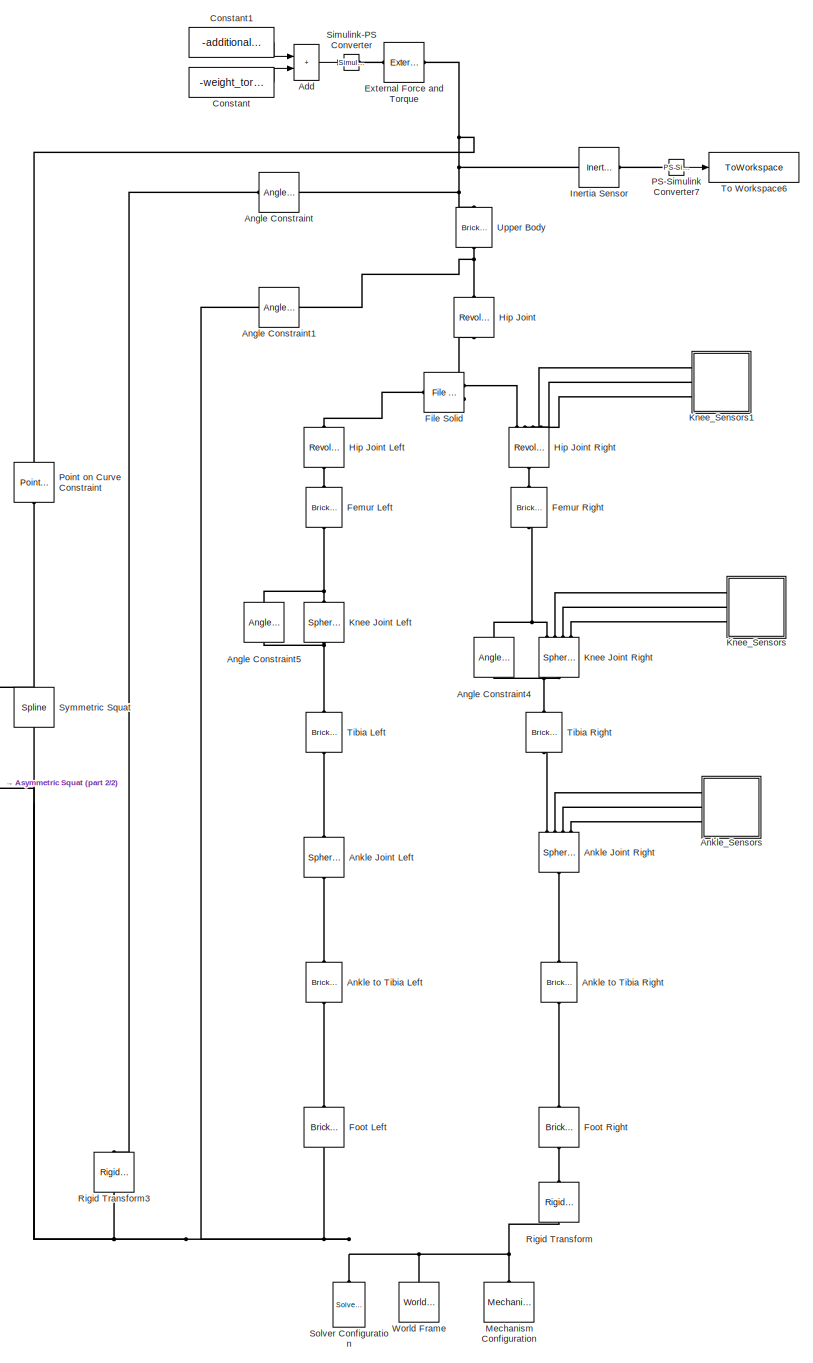
[diagram: root canvas - part 1/2, most of the canvas]
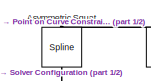
[diagram: root canvas - part 2/2, middle left region]
MODEL slx_13ce72e921bf
KIND model
CONFIG AbsTol = auto
CONFIG EnableMultiTasking = off
CONFIG FixedStep = auto
CONFIG MaxStep = auto
CONFIG MinStep = auto
CONFIG RelTol = 1e-3
CONFIG SampleTimeConstraint = Unconstrained
CONFIG SolverName = VariableStepAuto
CONFIG StartTime = 0.0
CONFIG StopTime = 10.0
BLOCK [Sum] Add
  IconShape = rectangular
  Ports = [2, 1]
BLOCK [Reference] Angle Constraint  REF=sm_lib/Constraints/Angle
Constraint
  Ports = [0, 0, 0, 0, 0, 1, 1]
  SourceBlock = sm_lib/Constraints/Angle\nConstraint
  SourceProductBaseCode = MS
  SourceType = Angle\nConstraint
BLOCK [Reference] Angle Constraint1  REF=sm_lib/Constraints/Angle
Constraint
  Ports = [0, 0, 0, 0, 0, 1, 1]
  SourceBlock = sm_lib/Constraints/Angle\nConstraint
  SourceProductBaseCode = MS
  SourceType = Angle\nConstraint
BLOCK [Reference] Angle Constraint4  REF=sm_lib/Constraints/Angle
Constraint
  NameLocation = left
  Ports = [0, 0, 0, 0, 0, 1, 1]
  SourceBlock = sm_lib/Constraints/Angle\nConstraint
  SourceProductBaseCode = MS
  SourceType = Angle\nConstraint
BLOCK [Reference] Angle Constraint5  REF=sm_lib/Constraints/Angle
Constraint
  NameLocation = left
  Ports = [0, 0, 0, 0, 0, 1, 1]
  SourceBlock = sm_lib/Constraints/Angle\nConstraint
  SourceProductBaseCode = MS
  SourceType = Angle\nConstraint
BLOCK [Reference] Ankle Joint Left  REF=sm_lib/Joints/Spherical
Joint
  NameLocation = right
  Ports = [0, 0, 0, 0, 0, 1, 1]
  SourceBlock = sm_lib/Joints/Spherical\nJoint
  SourceProductBaseCode = MS
  SourceType = Spherical\nJoint
BLOCK [Reference] Ankle Joint Right  REF=sm_lib/Joints/Spherical
Joint
  NameLocation = right
  Ports = [0, 0, 0, 0, 0, 1, 4]
  SourceBlock = sm_lib/Joints/Spherical\nJoint
  SourceProductBaseCode = MS
  SourceType = Spherical\nJoint
BLOCK [Reference] Ankle to Tibia Left  REF=sm_lib/Body Elements/Brick Solid
  NameLocation = right
  Ports = [0, 0, 0, 0, 0, 1, 1]
  SourceBlock = sm_lib/Body Elements/Brick Solid
  SourceProductBaseCode = MS
  SourceType = Brick Solid
BLOCK [Reference] Ankle to Tibia Right  REF=sm_lib/Body Elements/Brick Solid
  NameLocation = right
  Ports = [0, 0, 0, 0, 0, 1, 1]
  SourceBlock = sm_lib/Body Elements/Brick Solid
  SourceProductBaseCode = MS
  SourceType = Brick Solid
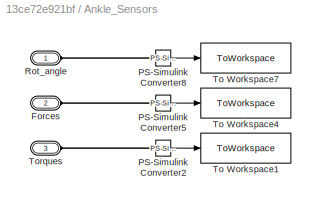
BLOCK [SubSystem] Ankle_Sensors
  Ports = [0, 0, 0, 0, 0, 3]
  RequestExecContextInheritance = off
BLOCK [PMIOPort] Ankle_Sensors/Forces
  Port = 2
  Side = Left
BLOCK [Reference] Ankle_Sensors/PS-Simulink Converter2  REF=nesl_utility/PS-Simulink
Converter
  Ports = [0, 1, 0, 0, 0, 1]
  SourceBlock = nesl_utility/PS-Simulink\nConverter
  SourceProductBaseCode = PW,SS
  SourceType = PS-Simulink\nConverter
BLOCK [Reference] Ankle_Sensors/PS-Simulink Converter5  REF=nesl_utility/PS-Simulink
Converter
  Ports = [0, 1, 0, 0, 0, 1]
  SourceBlock = nesl_utility/PS-Simulink\nConverter
  SourceProductBaseCode = PW,SS
  SourceType = PS-Simulink\nConverter
BLOCK [Reference] Ankle_Sensors/PS-Simulink Converter8  REF=nesl_utility/PS-Simulink
Converter
  Ports = [0, 1, 0, 0, 0, 1]
  SourceBlock = nesl_utility/PS-Simulink\nConverter
  SourceProductBaseCode = PW,SS
  SourceType = PS-Simulink\nConverter
BLOCK [PMIOPort] Ankle_Sensors/Rot_angle
  Side = Left
BLOCK [ToWorkspace] Ankle_Sensors/To Workspace1
  FixptAsFi = on
  MaxDataPoints = inf
  Ports = [1]
  SampleTime = -1
  SaveFormat = Timeseries
  VariableName = torque_ankle
BLOCK [ToWorkspace] Ankle_Sensors/To Workspace4
  FixptAsFi = on
  MaxDataPoints = inf
  Ports = [1]
  SampleTime = -1
  SaveFormat = Timeseries
  VariableName = force_ankle
BLOCK [ToWorkspace] Ankle_Sensors/To Workspace7
  FixptAsFi = on
  MaxDataPoints = inf
  Ports = [1]
  SampleTime = -1
  SaveFormat = Timeseries
  VariableName = rotation_angle_ankle
BLOCK [PMIOPort] Ankle_Sensors/Torques
  Port = 3
  Side = Left
BLOCK [Reference] Asymmetric Squat  REF=sm_lib/Curves and Surfaces/Spline
  NameLocation = right
  Ports = [0, 0, 0, 0, 0, 1, 1]
  SourceBlock = sm_lib/Curves and Surfaces/Spline
  SourceProductBaseCode = MS
  SourceType = Spline
BLOCK [Constant] Constant
  Value = -weight_torso
BLOCK [Constant] Constant1
  Value = -additional_weight
BLOCK [Reference] External Force and Torque  REF=sm_lib/Forces and
Torques/External Force
and Torque
  Ports = [0, 0, 0, 0, 0, 1, 1]
  SourceBlock = sm_lib/Forces and\nTorques/External Force\nand Torque
  SourceProductBaseCode = MS
  SourceType = External Force\nand Torque
BLOCK [Reference] Femur Left  REF=sm_lib/Body Elements/Brick Solid
  NameLocation = right
  Ports = [0, 0, 0, 0, 0, 1, 1]
  SourceBlock = sm_lib/Body Elements/Brick Solid
  SourceProductBaseCode = MS
  SourceType = Brick Solid
BLOCK [Reference] Femur Right  REF=sm_lib/Body Elements/Brick Solid
  NameLocation = right
  Ports = [0, 0, 0, 0, 0, 1, 1]
  SourceBlock = sm_lib/Body Elements/Brick Solid
  SourceProductBaseCode = MS
  SourceType = Brick Solid
BLOCK [Reference] File Solid  REF=sm_lib/Body Elements/File Solid
  NameLocation = top
  Ports = [0, 0, 0, 0, 0, 2, 1]
  SourceBlock = sm_lib/Body Elements/File Solid
  SourceProductBaseCode = MS
  SourceType = File Solid
BLOCK [Reference] Foot Left  REF=sm_lib/Body Elements/Brick Solid
  NameLocation = left
  Ports = [0, 0, 0, 0, 0, 1, 1]
  SourceBlock = sm_lib/Body Elements/Brick Solid
  SourceProductBaseCode = MS
  SourceType = Brick Solid
BLOCK [Reference] Foot Right  REF=sm_lib/Body Elements/Brick Solid
  NameLocation = left
  Ports = [0, 0, 0, 0, 0, 1, 1]
  SourceBlock = sm_lib/Body Elements/Brick Solid
  SourceProductBaseCode = MS
  SourceType = Brick Solid
BLOCK [Reference] Hip Joint  REF=sm_lib/Joints/Revolute Joint
  NameLocation = right
  Ports = [0, 0, 0, 0, 0, 1, 1]
  SourceBlock = sm_lib/Joints/Revolute Joint
  SourceProductBaseCode = MS
  SourceType = Revolute Joint
BLOCK [Reference] Hip Joint Left  REF=sm_lib/Joints/Revolute Joint
  NameLocation = right
  Ports = [0, 0, 0, 0, 0, 1, 1]
  SourceBlock = sm_lib/Joints/Revolute Joint
  SourceProductBaseCode = MS
  SourceType = Revolute Joint
BLOCK [Reference] Hip Joint Right  REF=sm_lib/Joints/Revolute Joint
  NameLocation = right
  Ports = [0, 0, 0, 0, 0, 1, 4]
  SourceBlock = sm_lib/Joints/Revolute Joint
  SourceProductBaseCode = MS
  SourceType = Revolute Joint
BLOCK [Reference] Inertia Sensor  REF=sm_lib/Body Elements/Inertia Sensor
  Ports = [0, 0, 0, 0, 0, 1, 1]
  SourceBlock = sm_lib/Body Elements/Inertia Sensor
  SourceProductBaseCode = MS
  SourceType = Inertia Sensor
BLOCK [Reference] Knee Joint Left  REF=sm_lib/Joints/Spherical
Joint
  NameLocation = right
  Ports = [0, 0, 0, 0, 0, 1, 1]
  SourceBlock = sm_lib/Joints/Spherical\nJoint
  SourceProductBaseCode = MS
  SourceType = Spherical\nJoint
BLOCK [Reference] Knee Joint Right  REF=sm_lib/Joints/Spherical
Joint
  NameLocation = right
  Ports = [0, 0, 0, 0, 0, 1, 4]
  SourceBlock = sm_lib/Joints/Spherical\nJoint
  SourceProductBaseCode = MS
  SourceType = Spherical\nJoint
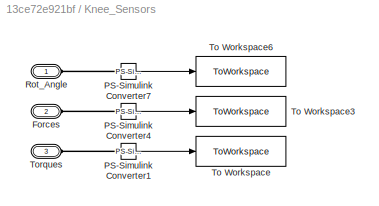
BLOCK [SubSystem] Knee_Sensors
  Ports = [0, 0, 0, 0, 0, 3]
  RequestExecContextInheritance = off
BLOCK [PMIOPort] Knee_Sensors/Forces
  Port = 2
  Side = Left
BLOCK [Reference] Knee_Sensors/PS-Simulink Converter1  REF=nesl_utility/PS-Simulink
Converter
  Ports = [0, 1, 0, 0, 0, 1]
  SourceBlock = nesl_utility/PS-Simulink\nConverter
  SourceProductBaseCode = PW,SS
  SourceType = PS-Simulink\nConverter
BLOCK [Reference] Knee_Sensors/PS-Simulink Converter4  REF=nesl_utility/PS-Simulink
Converter
  Ports = [0, 1, 0, 0, 0, 1]
  SourceBlock = nesl_utility/PS-Simulink\nConverter
  SourceProductBaseCode = PW,SS
  SourceType = PS-Simulink\nConverter
BLOCK [Reference] Knee_Sensors/PS-Simulink Converter7  REF=nesl_utility/PS-Simulink
Converter
  Ports = [0, 1, 0, 0, 0, 1]
  SourceBlock = nesl_utility/PS-Simulink\nConverter
  SourceProductBaseCode = PW,SS
  SourceType = PS-Simulink\nConverter
BLOCK [PMIOPort] Knee_Sensors/Rot_Angle
  Side = Left
BLOCK [ToWorkspace] Knee_Sensors/To Workspace
  FixptAsFi = on
  MaxDataPoints = inf
  Ports = [1]
  SampleTime = -1
  SaveFormat = Timeseries
  VariableName = torque_knee
BLOCK [ToWorkspace] Knee_Sensors/To Workspace3
  FixptAsFi = on
  MaxDataPoints = inf
  Ports = [1]
  SampleTime = -1
  SaveFormat = Timeseries
  VariableName = force_knee
BLOCK [ToWorkspace] Knee_Sensors/To Workspace6
  FixptAsFi = on
  MaxDataPoints = inf
  Ports = [1]
  SampleTime = -1
  SaveFormat = Timeseries
  VariableName = rotation_angle_knee
BLOCK [PMIOPort] Knee_Sensors/Torques
  Port = 3
  Side = Left
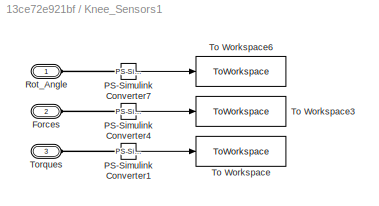
BLOCK [SubSystem] Knee_Sensors1
  Ports = [0, 0, 0, 0, 0, 3]
  RequestExecContextInheritance = off
BLOCK [PMIOPort] Knee_Sensors1/Forces
  Port = 2
  Side = Left
BLOCK [Reference] Knee_Sensors1/PS-Simulink Converter1  REF=nesl_utility/PS-Simulink
Converter
  Ports = [0, 1, 0, 0, 0, 1]
  SourceBlock = nesl_utility/PS-Simulink\nConverter
  SourceProductBaseCode = PW,SS
  SourceType = PS-Simulink\nConverter
BLOCK [Reference] Knee_Sensors1/PS-Simulink Converter4  REF=nesl_utility/PS-Simulink
Converter
  Ports = [0, 1, 0, 0, 0, 1]
  SourceBlock = nesl_utility/PS-Simulink\nConverter
  SourceProductBaseCode = PW,SS
  SourceType = PS-Simulink\nConverter
BLOCK [Reference] Knee_Sensors1/PS-Simulink Converter7  REF=nesl_utility/PS-Simulink
Converter
  Ports = [0, 1, 0, 0, 0, 1]
  SourceBlock = nesl_utility/PS-Simulink\nConverter
  SourceProductBaseCode = PW,SS
  SourceType = PS-Simulink\nConverter
BLOCK [PMIOPort] Knee_Sensors1/Rot_Angle
  Side = Left
BLOCK [ToWorkspace] Knee_Sensors1/To Workspace
  FixptAsFi = on
  MaxDataPoints = inf
  Ports = [1]
  SampleTime = -1
  SaveFormat = Timeseries
  VariableName = torque_hip
BLOCK [ToWorkspace] Knee_Sensors1/To Workspace3
  FixptAsFi = on
  MaxDataPoints = inf
  Ports = [1]
  SampleTime = -1
  SaveFormat = Timeseries
  VariableName = force_hip
BLOCK [ToWorkspace] Knee_Sensors1/To Workspace6
  FixptAsFi = on
  MaxDataPoints = inf
  Ports = [1]
  SampleTime = -1
  SaveFormat = Timeseries
  VariableName = rotation_angle_hip
BLOCK [PMIOPort] Knee_Sensors1/Torques
  Port = 3
  Side = Left
BLOCK [Reference] Mechanism Configuration  REF=sm_lib/Utilities/Mechanism
Configuration
  NameLocation = right
  Ports = [0, 0, 0, 0, 0, 0, 1]
  SourceBlock = sm_lib/Utilities/Mechanism\nConfiguration
  SourceProductBaseCode = MS
  SourceType = Mechanism\nConfiguration
BLOCK [Reference] PS-Simulink Converter7  REF=nesl_utility/PS-Simulink
Converter
  Ports = [0, 1, 0, 0, 0, 1]
  SourceBlock = nesl_utility/PS-Simulink\nConverter
  SourceProductBaseCode = PW,SS
  SourceType = PS-Simulink\nConverter
BLOCK [Reference] Point on Curve Constraint  REF=sm_lib/Constraints/Point on Curve
Constraint
  NameLocation = right
  Ports = [0, 0, 0, 0, 0, 1, 1]
  SourceBlock = sm_lib/Constraints/Point on Curve\nConstraint
  SourceProductBaseCode = MS
  SourceType = Point on Curve\nConstraint
BLOCK [Reference] Rigid Transform  REF=sm_lib/Frames and
Transforms/Rigid
Transform
  NameLocation = right
  Ports = [0, 0, 0, 0, 0, 1, 1]
  SourceBlock = sm_lib/Frames and\nTransforms/Rigid\nTransform
  SourceProductBaseCode = MS
  SourceType = Rigid\nTransform
BLOCK [Reference] Rigid Transform3  REF=sm_lib/Frames and
Transforms/Rigid
Transform
  NameLocation = left
  Ports = [0, 0, 0, 0, 0, 1, 1]
  SourceBlock = sm_lib/Frames and\nTransforms/Rigid\nTransform
  SourceProductBaseCode = MS
  SourceType = Rigid\nTransform
BLOCK [Reference] Simulink-PS Converter  REF=nesl_utility/Simulink-PS
Converter
  Ports = [1, 0, 0, 0, 0, 0, 1]
  SourceBlock = nesl_utility/Simulink-PS\nConverter
  SourceProductBaseCode = PW,SS
  SourceType = Simulink-PS\nConverter
BLOCK [Reference] Solver Configuration  REF=nesl_utility/Solver
Configuration
  NameLocation = right
  Ports = [0, 0, 0, 0, 0, 0, 1]
  SourceBlock = nesl_utility/Solver\nConfiguration
  SourceProductBaseCode = PW,SS
  SourceType = Solver\nConfiguration
BLOCK [Reference] Symmetric Squat  REF=sm_lib/Curves and Surfaces/Spline
  NameLocation = right
  Ports = [0, 0, 0, 0, 0, 1, 1]
  SourceBlock = sm_lib/Curves and Surfaces/Spline
  SourceProductBaseCode = MS
  SourceType = Spline
BLOCK [Reference] Tibia Left  REF=sm_lib/Body Elements/Brick Solid
  NameLocation = left
  Ports = [0, 0, 0, 0, 0, 1, 1]
  SourceBlock = sm_lib/Body Elements/Brick Solid
  SourceProductBaseCode = MS
  SourceType = Brick Solid
BLOCK [Reference] Tibia Right  REF=sm_lib/Body Elements/Brick Solid
  NameLocation = left
  Ports = [0, 0, 0, 0, 0, 1, 1]
  SourceBlock = sm_lib/Body Elements/Brick Solid
  SourceProductBaseCode = MS
  SourceType = Brick Solid
BLOCK [ToWorkspace] To Workspace6
  FixptAsFi = on
  MaxDataPoints = inf
  Ports = [1]
  SampleTime = -1
  SaveFormat = Timeseries
  VariableName = CenterOfMass
BLOCK [Reference] Upper Body  REF=sm_lib/Body Elements/Brick Solid
  NameLocation = right
  Ports = [0, 0, 0, 0, 0, 1, 1]
  SourceBlock = sm_lib/Body Elements/Brick Solid
  SourceProductBaseCode = MS
  SourceType = Brick Solid
BLOCK [Reference] World Frame  REF=sm_lib/Frames and
Transforms/World Frame
  NameLocation = right
  Ports = [0, 0, 0, 0, 0, 0, 1]
  SourceBlock = sm_lib/Frames and\nTransforms/World Frame
  SourceProductBaseCode = MS
  SourceType = World Frame
LINE Add:1 -> Simulink-PS Converter:1
LINE Ankle_Sensors/PS-Simulink Converter2:1 -> Ankle_Sensors/To Workspace1:1
LINE Ankle_Sensors/PS-Simulink Converter5:1 -> Ankle_Sensors/To Workspace4:1
LINE Ankle_Sensors/PS-Simulink Converter8:1 -> Ankle_Sensors/To Workspace7:1
LINE Constant1:1 -> Add:1
LINE Constant:1 -> Add:2
LINE Knee_Sensors/PS-Simulink Converter1:1 -> Knee_Sensors/To Workspace:1
LINE Knee_Sensors/PS-Simulink Converter4:1 -> Knee_Sensors/To Workspace3:1
LINE Knee_Sensors/PS-Simulink Converter7:1 -> Knee_Sensors/To Workspace6:1
LINE Knee_Sensors1/PS-Simulink Converter1:1 -> Knee_Sensors1/To Workspace:1
LINE Knee_Sensors1/PS-Simulink Converter4:1 -> Knee_Sensors1/To Workspace3:1
LINE Knee_Sensors1/PS-Simulink Converter7:1 -> Knee_Sensors1/To Workspace6:1
LINE PS-Simulink Converter7:1 -> To Workspace6:1
PNET net1: Angle Constraint1:LConn1 -- Asymmetric Squat:LConn1 -- Foot Left:RConn1 -- Mechanism Configuration:RConn1 -- Rigid Transform3:LConn1 -- Rigid Transform:LConn1 -- Solver Configuration:RConn1 -- Symmetric Squat:LConn1 -- World Frame:RConn1
PNET net2: Angle Constraint1:RConn1 -- Hip Joint:RConn1 -- Upper Body:LConn1
PNET net3: Angle Constraint4:LConn1 -- Knee Joint Right:LConn1 -- Tibia Right:LConn1
PNET net4: Angle Constraint4:RConn1 -- Femur Right:LConn1 -- Knee Joint Right:RConn1
PNET net5: Angle Constraint5:LConn1 -- Knee Joint Left:LConn1 -- Tibia Left:LConn1
PNET net6: Angle Constraint5:RConn1 -- Femur Left:LConn1 -- Knee Joint Left:RConn1
PLINE Angle Constraint:LConn1 -- Rigid Transform3:RConn1
PNET net7: Angle Constraint:RConn1 -- External Force and Torque:RConn1 -- Inertia Sensor:LConn1 -- Point on Curve Constraint:RConn1 -- Upper Body:RConn1
PLINE Ankle Joint Left:LConn1 -- Ankle to Tibia Left:RConn1
PLINE Ankle Joint Left:RConn1 -- Tibia Left:RConn1
PLINE Ankle Joint Right:LConn1 -- Ankle to Tibia Right:RConn1
PLINE Ankle Joint Right:RConn1 -- Tibia Right:RConn1
PLINE Ankle Joint Right:RConn2 -- Ankle_Sensors:LConn1
PLINE Ankle Joint Right:RConn3 -- Ankle_Sensors:LConn2
PLINE Ankle Joint Right:RConn4 -- Ankle_Sensors:LConn3
PLINE Ankle to Tibia Left:LConn1 -- Foot Left:LConn1
PLINE Ankle to Tibia Right:LConn1 -- Foot Right:LConn1
PLINE Ankle_Sensors/Forces:RConn1 -- Ankle_Sensors/PS-Simulink Converter5:LConn1
PLINE Ankle_Sensors/PS-Simulink Converter2:LConn1 -- Ankle_Sensors/Torques:RConn1
PLINE Ankle_Sensors/PS-Simulink Converter8:LConn1 -- Ankle_Sensors/Rot_angle:RConn1
PLINE Asymmetric Squat:RConn1 -- Point on Curve Constraint:LConn1
PLINE External Force and Torque:LConn1 -- Simulink-PS Converter:RConn1
PLINE Femur Left:RConn1 -- Hip Joint Left:LConn1
PLINE Femur Right:RConn1 -- Hip Joint Right:LConn1
PLINE File Solid:LConn1 -- Hip Joint Right:RConn1
PLINE File Solid:LConn2 -- Hip Joint:LConn1
PLINE File Solid:RConn1 -- Hip Joint Left:RConn1
PLINE Foot Right:RConn1 -- Rigid Transform:RConn1
PLINE Hip Joint Right:RConn2 -- Knee_Sensors1:LConn1
PLINE Hip Joint Right:RConn3 -- Knee_Sensors1:LConn2
PLINE Hip Joint Right:RConn4 -- Knee_Sensors1:LConn3
PLINE Inertia Sensor:RConn1 -- PS-Simulink Converter7:LConn1
PLINE Knee Joint Right:RConn2 -- Knee_Sensors:LConn1
PLINE Knee Joint Right:RConn3 -- Knee_Sensors:LConn2
PLINE Knee Joint Right:RConn4 -- Knee_Sensors:LConn3
PLINE Knee_Sensors/Forces:RConn1 -- Knee_Sensors/PS-Simulink Converter4:LConn1
PLINE Knee_Sensors/PS-Simulink Converter1:LConn1 -- Knee_Sensors/Torques:RConn1
PLINE Knee_Sensors/PS-Simulink Converter7:LConn1 -- Knee_Sensors/Rot_Angle:RConn1
PLINE Knee_Sensors1/Forces:RConn1 -- Knee_Sensors1/PS-Simulink Converter4:LConn1
PLINE Knee_Sensors1/PS-Simulink Converter1:LConn1 -- Knee_Sensors1/Torques:RConn1
PLINE Knee_Sensors1/PS-Simulink Converter7:LConn1 -- Knee_Sensors1/Rot_Angle:RConn1
note: PNET lines group multi-terminal physical nets as a canonical sorted terminal list (undirected conserving connections); 2-terminal nets keep the pairwise PLINE form
